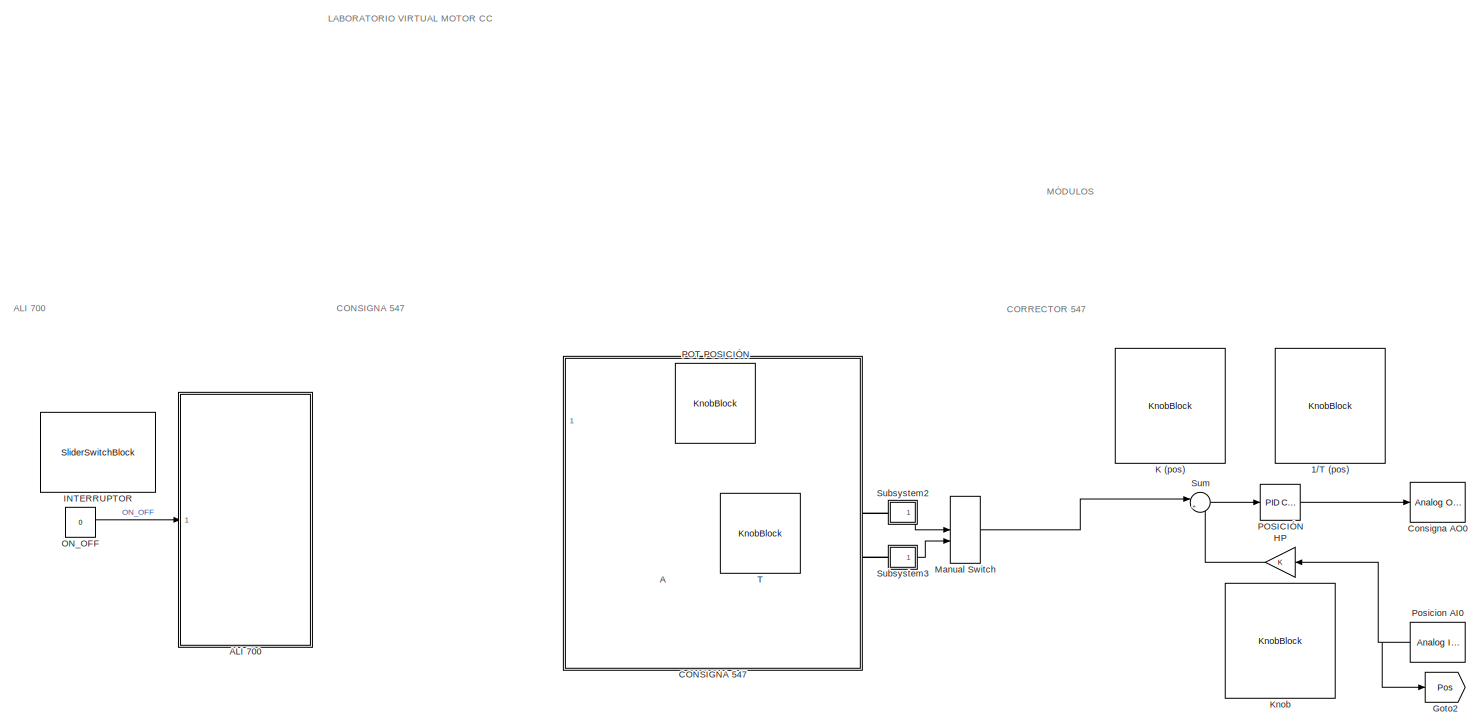
[diagram: root canvas - part 1/3, top left region]
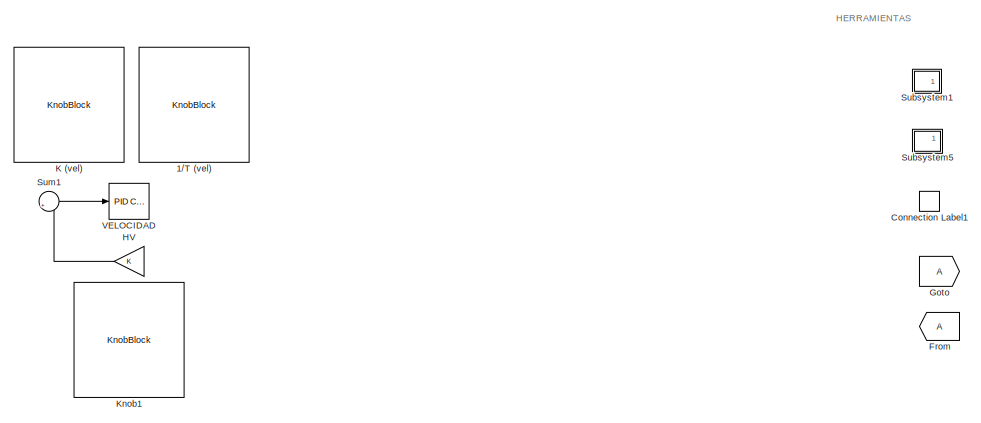
[diagram: root canvas - part 2/3, middle right region]
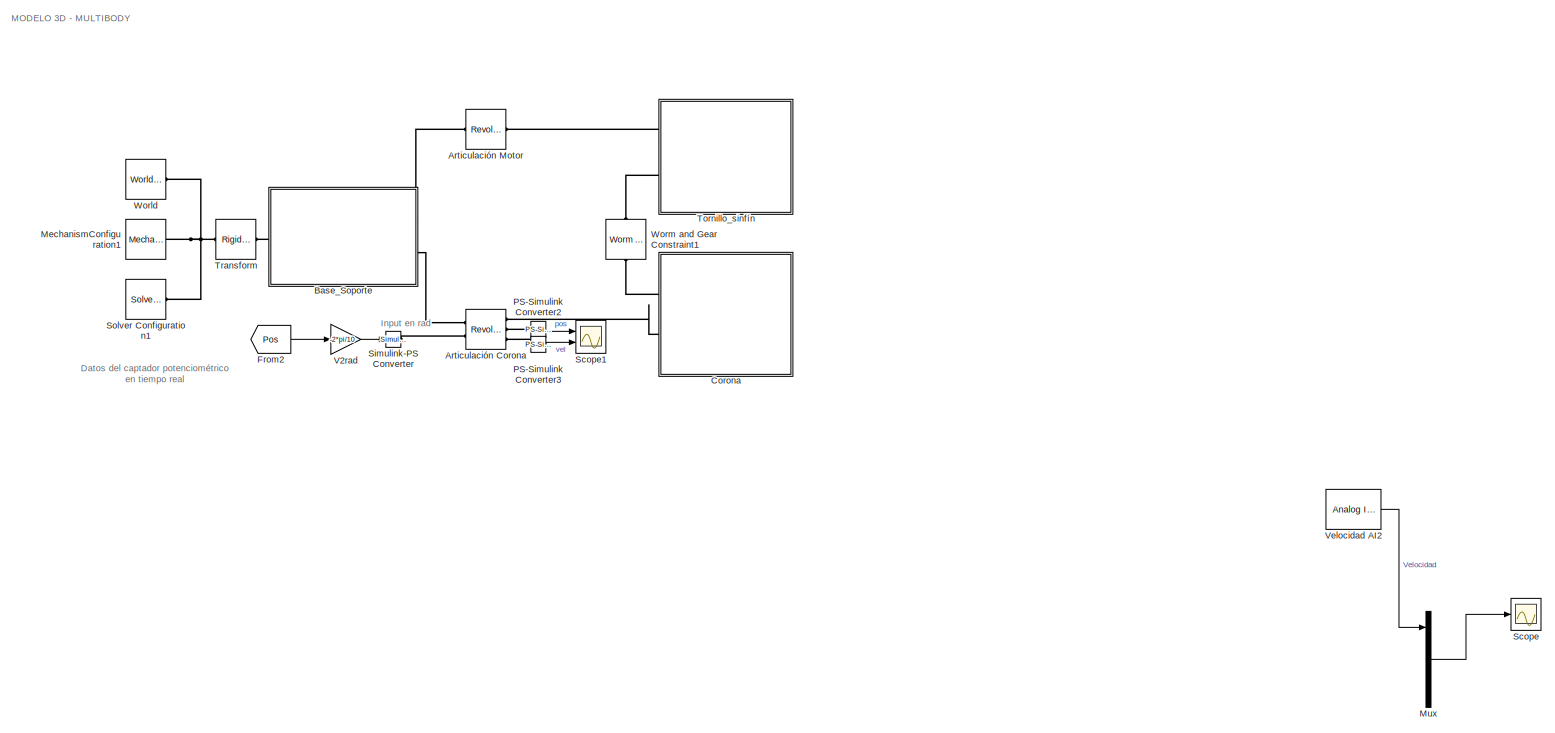
[diagram: root canvas - part 3/3, bottom center region]
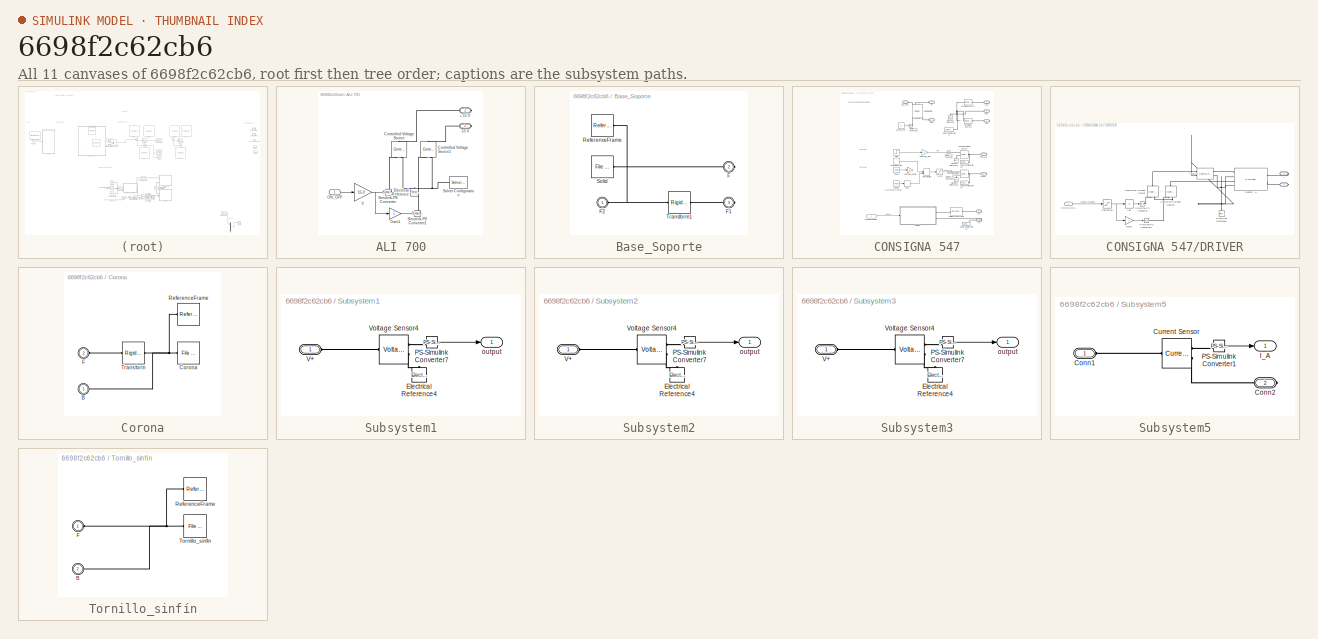
[diagram: thumbnail index - all 11 canvases of the model, root first then tree order]
MODEL slx_6698f2c62cb6
KIND model
CONFIG AbsTol = auto
CONFIG EnableMultiTasking = off
CONFIG FixedStep = 0.001
CONFIG MaxStep = 0.001
CONFIG MinStep = auto
CONFIG RelTol = auto
CONFIG SampleTimeConstraint = Unconstrained
CONFIG SolverName = ode5
CONFIG StartTime = 0.0
CONFIG StopTime = inf
WORKSPACE source: mxarray member
WORKSPACE A = 5
WORKSPACE Frec = 1
WORKSPACE a = 1
BLOCK [KnobBlock] 1//T (pos)
  LabelPosition = Hide
  ScaleMax = 10
  TickInterval = 1
BLOCK [KnobBlock] 1//T (vel)
  LabelPosition = Hide
  ScaleMax = 10
  TickInterval = 1
BLOCK [KnobBlock] A
  LabelPosition = Hide
  ScaleMax = 10
  TickInterval = 1
BLOCK [SubSystem] ALI 700
  Ports = [1, 0, 0, 0, 0, 0, 2]
  RequestExecContextInheritance = off
BLOCK [PMIOPort] ALI 700/+ 15 V
  Side = Right
BLOCK [PMIOPort] ALI 700/-15 V
  Port = 2
  Side = Right
BLOCK [Reference] ALI 700/Controlled Voltage Source  REF=fl_lib/Electrical/Electrical Sources/Controlled Voltage
Source
  NameLocation = right
  Ports = [0, 0, 0, 0, 0, 1, 2]
  SourceBlock = fl_lib/Electrical/Electrical Sources/Controlled Voltage\nSource
  SourceProductBaseCode = SS
  SourceType = Controlled Voltage\nSource
BLOCK [Reference] ALI 700/Controlled Voltage Source1  REF=fl_lib/Electrical/Electrical Sources/Controlled Voltage
Source
  NameLocation = right
  Ports = [0, 0, 0, 0, 0, 1, 2]
  SourceBlock = fl_lib/Electrical/Electrical Sources/Controlled Voltage\nSource
  SourceProductBaseCode = SS
  SourceType = Controlled Voltage\nSource
BLOCK [Reference] ALI 700/Electrical Reference  REF=fl_lib/Electrical/Electrical Elements/Electrical Reference
  NameLocation = right
  Ports = [0, 0, 0, 0, 0, 1]
  SourceBlock = fl_lib/Electrical/Electrical Elements/Electrical Reference
  SourceProductBaseCode = SS
  SourceType = Electrical Reference
BLOCK [Gain] ALI 700/Gain1
  Gain = -1
BLOCK [Inport] ALI 700/ON_OFF
BLOCK [Reference] ALI 700/Simulink-PS Converter  REF=nesl_utility/Simulink-PS
Converter
  Ports = [1, 0, 0, 0, 0, 0, 1]
  SourceBlock = nesl_utility/Simulink-PS\nConverter
  SourceProductBaseCode = SS
  SourceType = Simulink-PS\nConverter
BLOCK [Reference] ALI 700/Simulink-PS Converter1  REF=nesl_utility/Simulink-PS
Converter
  Ports = [1, 0, 0, 0, 0, 0, 1]
  SourceBlock = nesl_utility/Simulink-PS\nConverter
  SourceProductBaseCode = SS
  SourceType = Simulink-PS\nConverter
BLOCK [Reference] ALI 700/Solver Configuration  REF=nesl_utility/Solver
Configuration
  NameLocation = top
  Ports = [0, 0, 0, 0, 0, 0, 1]
  SourceBlock = nesl_utility/Solver\nConfiguration
  SourceProductBaseCode = SS
  SourceType = Solver\nConfiguration
BLOCK [Gain] ALI 700/V
  Gain = 15.3
BLOCK [Reference] Articulación Corona  REF=sm_lib/Joints/Revolute Joint
  Ports = [0, 0, 0, 0, 0, 2, 3]
  SourceBlock = sm_lib/Joints/Revolute Joint
  SourceProductBaseCode = MS
  SourceType = Revolute Joint
BLOCK [Reference] Articulación Motor  REF=sm_lib/Joints/Revolute Joint
  Ports = [0, 0, 0, 0, 0, 1, 1]
  SourceBlock = sm_lib/Joints/Revolute Joint
  SourceProductBaseCode = MS
  SourceType = Revolute Joint
BLOCK [SubSystem] Base_Soporte
  Ports = [0, 0, 0, 0, 0, 1, 2]
  RequestExecContextInheritance = off
BLOCK [PMIOPort] Base_Soporte/F
  Port = 2
  Side = Right
BLOCK [PMIOPort] Base_Soporte/F1
  Port = 3
  Side = Right
BLOCK [PMIOPort] Base_Soporte/F2
  NameLocation = top
  Side = Left
BLOCK [Reference] Base_Soporte/ReferenceFrame  REF=sm_lib/Frames and
Transforms/Reference
Frame
  Ports = [0, 0, 0, 0, 0, 0, 1]
  SourceBlock = sm_lib/Frames and\nTransforms/Reference\nFrame
  SourceProductBaseCode = MS
  SourceType = Reference\nFrame
BLOCK [Reference] Base_Soporte/Solid  REF=sm_lib/Body Elements/File Solid
  Ports = [0, 0, 0, 0, 0, 0, 1]
  SourceBlock = sm_lib/Body Elements/File Solid
  SourceProductBaseCode = MS
  SourceType = File Solid
BLOCK [Reference] Base_Soporte/Transform1  REF=sm_lib/Frames and
Transforms/Rigid
Transform
  Ports = [0, 0, 0, 0, 0, 1, 1]
  SourceBlock = sm_lib/Frames and\nTransforms/Rigid\nTransform
  SourceProductBaseCode = MS
  SourceType = Rigid\nTransform
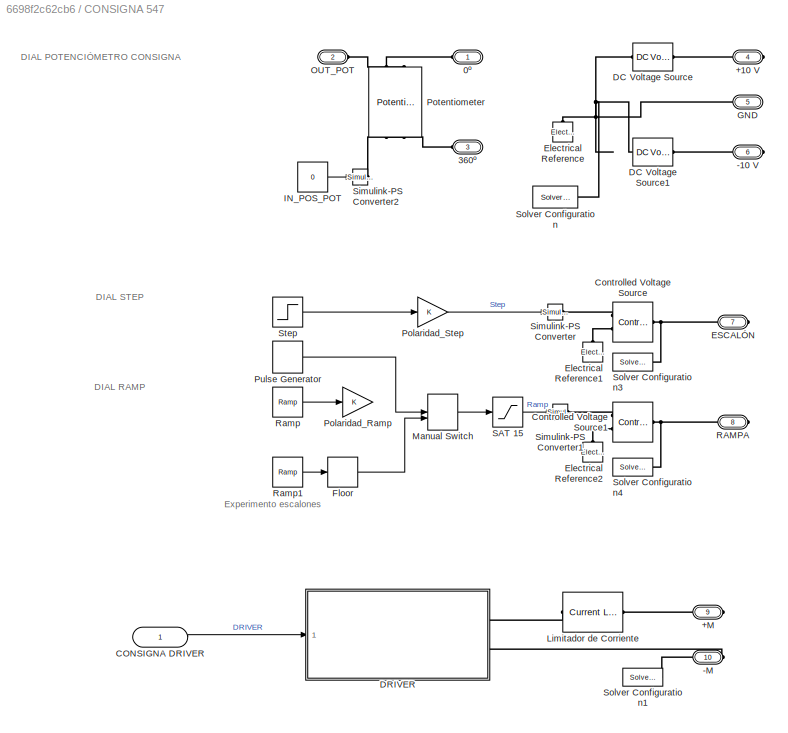
BLOCK [SubSystem] CONSIGNA 547
  PortSchema = {"entries":[{"content":{"sides":[{"content":{"connectorIds":["LConn1","LConn2","LConn3","In1"]},"type":"ConnectorPlacement.EquallySpacedRectSide","uuid":"4a8cfb57-dab5-486b-a591-dc2fea0d0b24"},{"content":{"connectorIds":["RConn1","RConn2","RConn3","RConn4","RConn5","RConn6","RConn7"],"side":"RIGHT"},"type":"ConnectorPlacement.EquallySpacedRectSide","uuid":"c23f5fb5-28b8-45c6-932c-b7e70ba2c44b"},{"...<+305ch>
  Ports = [1, 0, 0, 0, 0, 3, 7]
  RequestExecContextInheritance = off
BLOCK [PMIOPort] CONSIGNA 547/+10 V
  Port = 4
  Side = Right
BLOCK [PMIOPort] CONSIGNA 547/+M
  Port = 9
  Side = Right
BLOCK [PMIOPort] CONSIGNA 547/-10 V
  Port = 6
  Side = Right
BLOCK [PMIOPort] CONSIGNA 547/-M
  Port = 10
  Side = Right
BLOCK [PMIOPort] CONSIGNA 547/0º
  Side = Left
BLOCK [PMIOPort] CONSIGNA 547/360º
  Port = 3
  Side = Left
BLOCK [Inport] CONSIGNA 547/CONSIGNA  DRIVER
  IconDisplay = Signal name
BLOCK [Reference] CONSIGNA 547/Controlled Voltage Source  REF=fl_lib/Electrical/Electrical Sources/Controlled Voltage
Source
  Ports = [0, 0, 0, 0, 0, 1, 2]
  SourceBlock = fl_lib/Electrical/Electrical Sources/Controlled Voltage\nSource
  SourceProductBaseCode = SS
  SourceType = Controlled Voltage\nSource
BLOCK [Reference] CONSIGNA 547/Controlled Voltage Source1  REF=fl_lib/Electrical/Electrical Sources/Controlled Voltage
Source
  Ports = [0, 0, 0, 0, 0, 1, 2]
  SourceBlock = fl_lib/Electrical/Electrical Sources/Controlled Voltage\nSource
  SourceProductBaseCode = SS
  SourceType = Controlled Voltage\nSource
BLOCK [Reference] CONSIGNA 547/DC Voltage Source  REF=fl_lib/Electrical/Electrical Sources/DC Voltage Source
  Commented = on
  Ports = [0, 0, 0, 0, 0, 1, 1]
  SourceBlock = fl_lib/Electrical/Electrical Sources/DC Voltage Source
  SourceProductBaseCode = SS
  SourceType = DC Voltage Source
BLOCK [Reference] CONSIGNA 547/DC Voltage Source1  REF=fl_lib/Electrical/Electrical Sources/DC Voltage Source
  Commented = on
  Ports = [0, 0, 0, 0, 0, 1, 1]
  SourceBlock = fl_lib/Electrical/Electrical Sources/DC Voltage Source
  SourceProductBaseCode = SS
  SourceType = DC Voltage Source
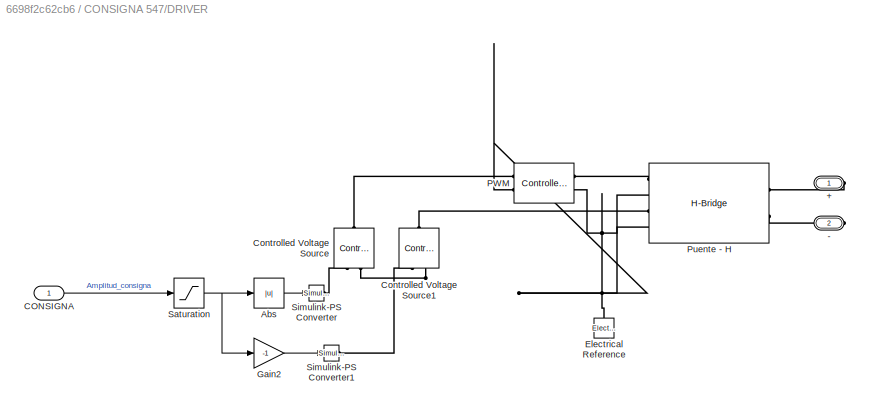
BLOCK [SubSystem] CONSIGNA 547/DRIVER
  Commented = on
  Ports = [1, 0, 0, 0, 0, 0, 2]
  RequestExecContextInheritance = off
BLOCK [PMIOPort] CONSIGNA 547/DRIVER/+
  Side = Right
BLOCK [PMIOPort] CONSIGNA 547/DRIVER/-
  Port = 2
  Side = Right
BLOCK [Abs] CONSIGNA 547/DRIVER/Abs
  SaturateOnIntegerOverflow = off
BLOCK [Inport] CONSIGNA 547/DRIVER/CONSIGNA
BLOCK [Reference] CONSIGNA 547/DRIVER/Controlled Voltage Source  REF=fl_lib/Electrical/Electrical Sources/Controlled Voltage
Source
  NameLocation = right
  Ports = [0, 0, 0, 0, 0, 1, 2]
  SourceBlock = fl_lib/Electrical/Electrical Sources/Controlled Voltage\nSource
  SourceProductBaseCode = SS
  SourceType = Controlled Voltage\nSource
BLOCK [Reference] CONSIGNA 547/DRIVER/Controlled Voltage Source1  REF=fl_lib/Electrical/Electrical Sources/Controlled Voltage
Source
  NameLocation = right
  Ports = [0, 0, 0, 0, 0, 1, 2]
  SourceBlock = fl_lib/Electrical/Electrical Sources/Controlled Voltage\nSource
  SourceProductBaseCode = SS
  SourceType = Controlled Voltage\nSource
BLOCK [Reference] CONSIGNA 547/DRIVER/Electrical Reference  REF=fl_lib/Electrical/Electrical Elements/Electrical Reference
  NameLocation = right
  Ports = [0, 0, 0, 0, 0, 1]
  SourceBlock = fl_lib/Electrical/Electrical Elements/Electrical Reference
  SourceProductBaseCode = SS
  SourceType = Electrical Reference
BLOCK [Gain] CONSIGNA 547/DRIVER/Gain2
  Gain = -1
BLOCK [Reference] CONSIGNA 547/DRIVER/PWM  REF=ee_lib/Integrated Circuits/Controlled PWM
Voltage
  NameLocation = top
  Ports = [0, 0, 0, 0, 0, 2, 2]
  SourceBlock = ee_lib/Integrated Circuits/Controlled PWM\nVoltage
  SourceProductBaseCode = PS
  SourceType = Controlled PWM\nVoltage
BLOCK [Reference] CONSIGNA 547/DRIVER/Puente - H  REF=ee_lib/Semiconductors &
Converters/Converters/H-Bridge
  NameLocation = top
  Ports = [0, 0, 0, 0, 0, 4, 2]
  SourceBlock = ee_lib/Semiconductors &\nConverters/Converters/H-Bridge
  SourceProductBaseCode = PS
  SourceType = H-Bridge
BLOCK [Saturate] CONSIGNA 547/DRIVER/Saturation
  LowerLimit = -PWM_sat
  UpperLimit = PWM_sat
BLOCK [Reference] CONSIGNA 547/DRIVER/Simulink-PS Converter  REF=nesl_utility/Simulink-PS
Converter
  Ports = [1, 0, 0, 0, 0, 0, 1]
  SourceBlock = nesl_utility/Simulink-PS\nConverter
  SourceProductBaseCode = SS
  SourceType = Simulink-PS\nConverter
BLOCK [Reference] CONSIGNA 547/DRIVER/Simulink-PS Converter1  REF=nesl_utility/Simulink-PS
Converter
  Ports = [1, 0, 0, 0, 0, 0, 1]
  SourceBlock = nesl_utility/Simulink-PS\nConverter
  SourceProductBaseCode = SS
  SourceType = Simulink-PS\nConverter
BLOCK [PMIOPort] CONSIGNA 547/ESCALÓN
  Port = 7
  Side = Right
BLOCK [Reference] CONSIGNA 547/Electrical Reference  REF=fl_lib/Electrical/Electrical Elements/Electrical Reference
  Commented = on
  NameLocation = right
  Ports = [0, 0, 0, 0, 0, 1]
  SourceBlock = fl_lib/Electrical/Electrical Elements/Electrical Reference
  SourceProductBaseCode = SS
  SourceType = Electrical Reference
BLOCK [Reference] CONSIGNA 547/Electrical Reference1  REF=fl_lib/Electrical/Electrical Elements/Electrical Reference
  NameLocation = right
  Ports = [0, 0, 0, 0, 0, 1]
  SourceBlock = fl_lib/Electrical/Electrical Elements/Electrical Reference
  SourceProductBaseCode = SS
  SourceType = Electrical Reference
BLOCK [Reference] CONSIGNA 547/Electrical Reference2  REF=fl_lib/Electrical/Electrical Elements/Electrical Reference
  NameLocation = right
  Ports = [0, 0, 0, 0, 0, 1]
  SourceBlock = fl_lib/Electrical/Electrical Elements/Electrical Reference
  SourceProductBaseCode = SS
  SourceType = Electrical Reference
BLOCK [Rounding] CONSIGNA 547/Floor
BLOCK [PMIOPort] CONSIGNA 547/GND
  Port = 5
  Side = Right
BLOCK [Constant] CONSIGNA 547/IN_POS_POT
  Commented = on
  Value = 0
BLOCK [Reference] CONSIGNA 547/Limitador de Corriente  REF=ee_lib/Semiconductors &
Converters/Current Limiter
  Commented = on
  NameLocation = top
  Ports = [0, 0, 0, 0, 0, 1, 1]
  SourceBlock = ee_lib/Semiconductors &\nConverters/Current Limiter
  SourceProductBaseCode = PS
  SourceType = Current Limiter
BLOCK [ManualSwitch] CONSIGNA 547/Manual Switch
BLOCK [PMIOPort] CONSIGNA 547/OUT_POT
  NameLocation = top
  Port = 2
  Side = Left
BLOCK [Gain] CONSIGNA 547/Polaridad_Ramp
BLOCK [Gain] CONSIGNA 547/Polaridad_Step
BLOCK [Reference] CONSIGNA 547/Potentiometer  REF=ee_lib/Passive/Potentiometer
  Commented = on
  NameLocation = left
  Ports = [0, 0, 0, 0, 0, 2, 2]
  SourceBlock = ee_lib/Passive/Potentiometer
  SourceProductBaseCode = PS
  SourceType = Potentiometer
BLOCK [DiscretePulseGenerator] CONSIGNA 547/Pulse Generator
  Amplitude = 5
  Period = 3
  Ports = [0, 1]
  PulseType = Time based
  PulseWidth = 50
BLOCK [PMIOPort] CONSIGNA 547/RAMPA
  Port = 8
  Side = Right
BLOCK [Reference] CONSIGNA 547/Ramp  REF=simulink/Sources/Ramp
  Ports = [0, 1]
  SourceBlock = simulink/Sources/Ramp
  SourceProductBaseCode = SL
  SourceType = Ramp
BLOCK [Reference] CONSIGNA 547/Ramp1  REF=simulink/Sources/Ramp
  Ports = [0, 1]
  SourceBlock = simulink/Sources/Ramp
  SourceProductBaseCode = SL
  SourceType = Ramp
BLOCK [Saturate] CONSIGNA 547/SAT 15
  LowerLimit = -15
  UpperLimit = 15
BLOCK [Reference] CONSIGNA 547/Simulink-PS Converter  REF=nesl_utility/Simulink-PS
Converter
  Ports = [1, 0, 0, 0, 0, 0, 1]
  SourceBlock = nesl_utility/Simulink-PS\nConverter
  SourceProductBaseCode = SS
  SourceType = Simulink-PS\nConverter
BLOCK [Reference] CONSIGNA 547/Simulink-PS Converter1  REF=nesl_utility/Simulink-PS
Converter
  Ports = [1, 0, 0, 0, 0, 0, 1]
  SourceBlock = nesl_utility/Simulink-PS\nConverter
  SourceProductBaseCode = SS
  SourceType = Simulink-PS\nConverter
BLOCK [Reference] CONSIGNA 547/Simulink-PS Converter2  REF=nesl_utility/Simulink-PS
Converter
  Commented = on
  Ports = [1, 0, 0, 0, 0, 0, 1]
  SourceBlock = nesl_utility/Simulink-PS\nConverter
  SourceProductBaseCode = SS
  SourceType = Simulink-PS\nConverter
BLOCK [Reference] CONSIGNA 547/Solver Configuration  REF=nesl_utility/Solver
Configuration
  Commented = on
  Ports = [0, 0, 0, 0, 0, 0, 1]
  SourceBlock = nesl_utility/Solver\nConfiguration
  SourceProductBaseCode = SS
  SourceType = Solver\nConfiguration
BLOCK [Reference] CONSIGNA 547/Solver Configuration1  REF=nesl_utility/Solver
Configuration
  Commented = on
  Ports = [0, 0, 0, 0, 0, 0, 1]
  SourceBlock = nesl_utility/Solver\nConfiguration
  SourceProductBaseCode = SS
  SourceType = Solver\nConfiguration
BLOCK [Reference] CONSIGNA 547/Solver Configuration3  REF=nesl_utility/Solver
Configuration
  Ports = [0, 0, 0, 0, 0, 0, 1]
  SourceBlock = nesl_utility/Solver\nConfiguration
  SourceProductBaseCode = SS
  SourceType = Solver\nConfiguration
BLOCK [Reference] CONSIGNA 547/Solver Configuration4  REF=nesl_utility/Solver
Configuration
  Ports = [0, 0, 0, 0, 0, 0, 1]
  SourceBlock = nesl_utility/Solver\nConfiguration
  SourceProductBaseCode = SS
  SourceType = Solver\nConfiguration
BLOCK [Step] CONSIGNA 547/Step
  After = 7.527891575934077
  SampleTime = 0
BLOCK [ConnectionLabel] Connection Label1
  Ports = [0, 0, 0, 0, 0, 1]
BLOCK [Reference] Consigna AO0  REF=sldrtlib/Analog Output
  AttributesFormatString = National Instruments\nPCIe-6321 [auto]
  Ports = [1]
  SourceBlock = sldrtlib/Analog Output
  SourceProductBaseCode = WT
  SourceType = Simulink Desktop Real-Time Analog Output
BLOCK [SubSystem] Corona
  Ports = [0, 0, 0, 0, 0, 2]
  RequestExecContextInheritance = off
BLOCK [PMIOPort] Corona/B
  NameLocation = top
  Side = Left
BLOCK [Reference] Corona/Corona  REF=sm_lib/Body Elements/File Solid
  NameLocation = top
  Ports = [0, 0, 0, 0, 0, 0, 1]
  SourceBlock = sm_lib/Body Elements/File Solid
  SourceProductBaseCode = MS
  SourceType = File Solid
BLOCK [PMIOPort] Corona/F
  NameLocation = top
  Port = 2
  Side = Left
BLOCK [Reference] Corona/ReferenceFrame  REF=sm_lib/Frames and
Transforms/Reference
Frame
  NameLocation = top
  Ports = [0, 0, 0, 0, 0, 0, 1]
  SourceBlock = sm_lib/Frames and\nTransforms/Reference\nFrame
  SourceProductBaseCode = MS
  SourceType = Reference\nFrame
BLOCK [Reference] Corona/Transform  REF=sm_lib/Frames and
Transforms/Rigid
Transform
  NameLocation = top
  Ports = [0, 0, 0, 0, 0, 1, 1]
  SourceBlock = sm_lib/Frames and\nTransforms/Rigid\nTransform
  SourceProductBaseCode = MS
  SourceType = Rigid\nTransform
BLOCK [From] From
  Commented = on
BLOCK [From] From2
  GotoTag = Pos
BLOCK [Goto] Goto
  Commented = on
BLOCK [Goto] Goto2
  GotoTag = Pos
BLOCK [Gain] HP
BLOCK [Gain] HV
BLOCK [SliderSwitchBlock] INTERRUPTOR
  LabelPosition = Hide
BLOCK [KnobBlock] K (pos)
  LabelPosition = Hide
  ScaleMax = 10
  TickInterval = 1
BLOCK [KnobBlock] K (vel)
  LabelPosition = Hide
  ScaleMax = 10
  TickInterval = 1
BLOCK [KnobBlock] Knob
  LabelPosition = Hide
  ScaleMax = 1
  TickInterval = 0.1
BLOCK [KnobBlock] Knob1
  LabelPosition = Hide
  ScaleMax = 2
  TickInterval = 0.2
BLOCK [ManualSwitch] Manual Switch
BLOCK [Reference] MechanismConfiguration1  REF=sm_lib/Utilities/Mechanism
Configuration
  Ports = [0, 0, 0, 0, 0, 0, 1]
  SourceBlock = sm_lib/Utilities/Mechanism\nConfiguration
  SourceProductBaseCode = MS
  SourceType = Mechanism\nConfiguration
BLOCK [Mux] Mux
  Commented = on
  DisplayOption = bar
  Inputs = 5
  Ports = [5, 1]
BLOCK [Constant] ON_OFF
  Value = 0
BLOCK [Reference] POSICIÓN  REF=pid_lib/PID Controller
  Ports = [1, 1]
  SourceBlock = pid_lib/PID Controller
  SourceProductBaseCode = SL
  SourceType = PID 1dof
BLOCK [KnobBlock] POT POSICIÓN
  LabelPosition = Hide
  ScaleMax = 360
  TickInterval = 20
BLOCK [Reference] PS-Simulink Converter2  REF=nesl_utility/PS-Simulink
Converter
  Ports = [0, 1, 0, 0, 0, 1]
  SourceBlock = nesl_utility/PS-Simulink\nConverter
  SourceProductBaseCode = SS
  SourceType = PS-Simulink\nConverter
BLOCK [Reference] PS-Simulink Converter3  REF=nesl_utility/PS-Simulink
Converter
  Ports = [0, 1, 0, 0, 0, 1]
  SourceBlock = nesl_utility/PS-Simulink\nConverter
  SourceProductBaseCode = SS
  SourceType = PS-Simulink\nConverter
BLOCK [Reference] Posicion AI0  REF=sldrtlib/Analog Input
  AttributesFormatString = National Instruments\nPCIe-6321 [auto]
  NameLocation = top
  Ports = [0, 1]
  SourceBlock = sldrtlib/Analog Input
  SourceProductBaseCode = WT
  SourceType = Simulink Desktop Real-Time Analog Input
BLOCK [Scope] Scope
  Commented = on
  Floating = off
  NumInputPorts = 1
  Ports = [1]
  ScopeSpecificationString = Simulink.scopes.TimeScopeBlockCfg('CurrentConfiguration', extmgr.ConfigurationSet(extmgr.Configuration('Core','General UI',true),extmgr.Configuration('Core','Source UI',true),extmgr.Configuration('Sources','WiredSimulink',true,'DataLoggingVariableName','ScopeData1'),extmgr.Configuration('Visuals','Time Domain',true,'SerializedDisplays',{struct('MinYLimReal','-59.58131','MaxYLimReal','18.44827','YL...<+1471ch>
BLOCK [Scope] Scope1
  Floating = off
  NumInputPorts = 2
  Ports = [2]
  ScopeSpecificationString = Simulink.scopes.TimeScopeBlockCfg('CurrentConfiguration', extmgr.ConfigurationSet(extmgr.Configuration('Core','General UI',true),extmgr.Configuration('Core','Source UI',true),extmgr.Configuration('Sources','WiredSimulink',true,'DataLoggingVariableName','ScopeData1'),extmgr.Configuration('Visuals','Time Domain',true,'SerializedDisplays',{struct('MinYLimReal','-110.28508','MaxYLimReal','103.3749','Y...<+1408ch>
BLOCK [Reference] Simulink-PS Converter  REF=nesl_utility/Simulink-PS
Converter
  Ports = [1, 0, 0, 0, 0, 0, 1]
  SourceBlock = nesl_utility/Simulink-PS\nConverter
  SourceProductBaseCode = SS
  SourceType = Simulink-PS\nConverter
BLOCK [Reference] Solver Configuration1  REF=nesl_utility/Solver
Configuration
  Ports = [0, 0, 0, 0, 0, 0, 1]
  SourceBlock = nesl_utility/Solver\nConfiguration
  SourceProductBaseCode = SS
  SourceType = Solver\nConfiguration
BLOCK [SubSystem] Subsystem1
  Commented = on
  Ports = [0, 1, 0, 0, 0, 1]
  RequestExecContextInheritance = off
BLOCK [Reference] Subsystem1/Electrical Reference4  REF=fl_lib/Electrical/Electrical Elements/Electrical Reference
  NameLocation = right
  Ports = [0, 0, 0, 0, 0, 1]
  SourceBlock = fl_lib/Electrical/Electrical Elements/Electrical Reference
  SourceProductBaseCode = SS
  SourceType = Electrical Reference
BLOCK [Reference] Subsystem1/PS-Simulink Converter7  REF=nesl_utility/PS-Simulink
Converter
  Ports = [0, 1, 0, 0, 0, 1]
  SourceBlock = nesl_utility/PS-Simulink\nConverter
  SourceProductBaseCode = SS
  SourceType = PS-Simulink\nConverter
BLOCK [PMIOPort] Subsystem1/V+
  Side = Left
BLOCK [Reference] Subsystem1/Voltage Sensor4  REF=fl_lib/Electrical/Electrical Sensors/Voltage Sensor
  NameLocation = top
  Ports = [0, 0, 0, 0, 0, 1, 2]
  SourceBlock = fl_lib/Electrical/Electrical Sensors/Voltage Sensor
  SourceProductBaseCode = SS
  SourceType = Voltage Sensor
BLOCK [Outport] Subsystem1/output
BLOCK [SubSystem] Subsystem2
  Ports = [0, 1, 0, 0, 0, 1]
  RequestExecContextInheritance = off
BLOCK [Reference] Subsystem2/Electrical Reference4  REF=fl_lib/Electrical/Electrical Elements/Electrical Reference
  NameLocation = right
  Ports = [0, 0, 0, 0, 0, 1]
  SourceBlock = fl_lib/Electrical/Electrical Elements/Electrical Reference
  SourceProductBaseCode = SS
  SourceType = Electrical Reference
BLOCK [Reference] Subsystem2/PS-Simulink Converter7  REF=nesl_utility/PS-Simulink
Converter
  Ports = [0, 1, 0, 0, 0, 1]
  SourceBlock = nesl_utility/PS-Simulink\nConverter
  SourceProductBaseCode = SS
  SourceType = PS-Simulink\nConverter
BLOCK [PMIOPort] Subsystem2/V+
  Side = Left
BLOCK [Reference] Subsystem2/Voltage Sensor4  REF=fl_lib/Electrical/Electrical Sensors/Voltage Sensor
  NameLocation = top
  Ports = [0, 0, 0, 0, 0, 1, 2]
  SourceBlock = fl_lib/Electrical/Electrical Sensors/Voltage Sensor
  SourceProductBaseCode = SS
  SourceType = Voltage Sensor
BLOCK [Outport] Subsystem2/output
BLOCK [SubSystem] Subsystem3
  Ports = [0, 1, 0, 0, 0, 1]
  RequestExecContextInheritance = off
BLOCK [Reference] Subsystem3/Electrical Reference4  REF=fl_lib/Electrical/Electrical Elements/Electrical Reference
  NameLocation = right
  Ports = [0, 0, 0, 0, 0, 1]
  SourceBlock = fl_lib/Electrical/Electrical Elements/Electrical Reference
  SourceProductBaseCode = SS
  SourceType = Electrical Reference
BLOCK [Reference] Subsystem3/PS-Simulink Converter7  REF=nesl_utility/PS-Simulink
Converter
  Ports = [0, 1, 0, 0, 0, 1]
  SourceBlock = nesl_utility/PS-Simulink\nConverter
  SourceProductBaseCode = SS
  SourceType = PS-Simulink\nConverter
BLOCK [PMIOPort] Subsystem3/V+
  Side = Left
BLOCK [Reference] Subsystem3/Voltage Sensor4  REF=fl_lib/Electrical/Electrical Sensors/Voltage Sensor
  NameLocation = top
  Ports = [0, 0, 0, 0, 0, 1, 2]
  SourceBlock = fl_lib/Electrical/Electrical Sensors/Voltage Sensor
  SourceProductBaseCode = SS
  SourceType = Voltage Sensor
BLOCK [Outport] Subsystem3/output
BLOCK [SubSystem] Subsystem5
  Commented = on
  PortSchema = {"entries":[{"content":{"sides":[{"content":{"connectorIds":["LConn1"]},"type":"ConnectorPlacement.EquallySpacedRectSide","uuid":"5f01206e-22b9-410b-acd2-df307548d4ec"},{"content":{"connectorIds":["RConn1"],"side":"RIGHT"},"type":"ConnectorPlacement.EquallySpacedRectSide","uuid":"8e9acb11-d78e-4e8a-8f36-3c08acadde04"},{"content":{"side":"TOP"},"type":"ConnectorPlacement.EquallySpacedRectSide","uui...<+377ch>
  Ports = [0, 1, 0, 0, 0, 1, 1]
  RequestExecContextInheritance = off
BLOCK [PMIOPort] Subsystem5/Conn1
  Side = Left
BLOCK [PMIOPort] Subsystem5/Conn2
  Port = 2
  Side = Right
BLOCK [Reference] Subsystem5/Current Sensor  REF=fl_lib/Electrical/Electrical Sensors/Current Sensor
  Ports = [0, 0, 0, 0, 0, 1, 2]
  SourceBlock = fl_lib/Electrical/Electrical Sensors/Current Sensor
  SourceProductBaseCode = SS
  SourceType = Current Sensor
BLOCK [Outport] Subsystem5/I_A
BLOCK [Reference] Subsystem5/PS-Simulink Converter1  REF=nesl_utility/PS-Simulink
Converter
  Ports = [0, 1, 0, 0, 0, 1]
  SourceBlock = nesl_utility/PS-Simulink\nConverter
  SourceProductBaseCode = SS
  SourceType = PS-Simulink\nConverter
BLOCK [Sum] Sum
  Inputs = |+-
  Ports = [2, 1]
BLOCK [Sum] Sum1
  Inputs = |+-
  Ports = [2, 1]
BLOCK [KnobBlock] T
  LabelPosition = Hide
  ScaleMax = 10
  TickInterval = 1
BLOCK [SubSystem] Tornillo_sinfín
  Ports = [0, 0, 0, 0, 0, 2]
  RequestExecContextInheritance = off
BLOCK [PMIOPort] Tornillo_sinfín/B
  NameLocation = top
  Port = 2
  Side = Left
BLOCK [PMIOPort] Tornillo_sinfín/F
  NameLocation = top
  Side = Left
BLOCK [Reference] Tornillo_sinfín/ReferenceFrame  REF=sm_lib/Frames and
Transforms/Reference
Frame
  NameLocation = top
  Ports = [0, 0, 0, 0, 0, 0, 1]
  SourceBlock = sm_lib/Frames and\nTransforms/Reference\nFrame
  SourceProductBaseCode = MS
  SourceType = Reference\nFrame
BLOCK [Reference] Tornillo_sinfín/Tornillo_sinfin  REF=sm_lib/Body Elements/File Solid
  NameLocation = top
  Ports = [0, 0, 0, 0, 0, 0, 1]
  SourceBlock = sm_lib/Body Elements/File Solid
  SourceProductBaseCode = MS
  SourceType = File Solid
BLOCK [Reference] Transform  REF=sm_lib/Frames and
Transforms/Rigid
Transform
  Ports = [0, 0, 0, 0, 0, 1, 1]
  SourceBlock = sm_lib/Frames and\nTransforms/Rigid\nTransform
  SourceProductBaseCode = MS
  SourceType = Rigid\nTransform
BLOCK [Gain] V2rad
  Gain = -2*pi/10
BLOCK [Reference] VELOCIDAD  REF=pid_lib/PID Controller
  Ports = [1, 1]
  SourceBlock = pid_lib/PID Controller
  SourceProductBaseCode = SL
  SourceType = PID 1dof
BLOCK [Reference] Velocidad AI2  REF=sldrtlib/Analog Input
  AttributesFormatString = National Instruments\nPCIe-6321 [auto]
  Commented = on
  Ports = [0, 1]
  SourceBlock = sldrtlib/Analog Input
  SourceProductBaseCode = WT
  SourceType = Simulink Desktop Real-Time Analog Input
BLOCK [Reference] World  REF=sm_lib/Frames and
Transforms/World Frame
  Ports = [0, 0, 0, 0, 0, 0, 1]
  SourceBlock = sm_lib/Frames and\nTransforms/World Frame
  SourceProductBaseCode = MS
  SourceType = World Frame
BLOCK [Reference] Worm and Gear Constraint1  REF=sm_lib/Gears and
Couplings/Gears/Worm and Gear
Constraint
  NameLocation = left
  Ports = [0, 0, 0, 0, 0, 1, 1]
  SourceBlock = sm_lib/Gears and\nCouplings/Gears/Worm and Gear\nConstraint
  SourceProductBaseCode = MS
  SourceType = Worm and Gear\nConstraint
ANNOTATION (root): LABORATORIO VIRTUAL MOTOR CC
ANNOTATION (root): MÓDULOS
ANNOTATION (root): Datos del captador potenciométrico en tiempo real
ANNOTATION (root): HERRAMIENTAS
ANNOTATION (root): ALI 700
ANNOTATION (root): CONSIGNA 547
ANNOTATION (root): CORRECTOR 547
ANNOTATION (root): Input en rad
ANNOTATION (root): MODELO 3D - MULTIBODY
ANNOTATION CONSIGNA 547: DIAL POTENCIÓMETRO CONSIGNA
ANNOTATION CONSIGNA 547: DIAL RAMP
ANNOTATION CONSIGNA 547: DIAL STEP
ANNOTATION CONSIGNA 547: Experimento escalones
LINE ALI 700/Gain1:1 -> ALI 700/Simulink-PS Converter1:1
LINE ALI 700/ON_OFF:1 -> ALI 700/V:1
NET ALI 700/V:1 -> ALI 700/Gain1:1, ALI 700/Simulink-PS Converter:1
LINE CONSIGNA 547/CONSIGNA  DRIVER:1 -> CONSIGNA 547/DRIVER:1
LINE CONSIGNA 547/DRIVER/Abs:1 -> CONSIGNA 547/DRIVER/Simulink-PS Converter:1
LINE CONSIGNA 547/DRIVER/CONSIGNA:1 -> CONSIGNA 547/DRIVER/Saturation:1
LINE CONSIGNA 547/DRIVER/Gain2:1 -> CONSIGNA 547/DRIVER/Simulink-PS Converter1:1
NET CONSIGNA 547/DRIVER/Saturation:1 -> CONSIGNA 547/DRIVER/Abs:1, CONSIGNA 547/DRIVER/Gain2:1
LINE CONSIGNA 547/Floor:1 -> CONSIGNA 547/Manual Switch:2
LINE CONSIGNA 547/IN_POS_POT:1 -> CONSIGNA 547/Simulink-PS Converter2:1
LINE CONSIGNA 547/Manual Switch:1 -> CONSIGNA 547/SAT 15:1
LINE CONSIGNA 547/Polaridad_Step:1 -> CONSIGNA 547/Simulink-PS Converter:1
LINE CONSIGNA 547/Pulse Generator:1 -> CONSIGNA 547/Manual Switch:1
LINE CONSIGNA 547/Ramp1:1 -> CONSIGNA 547/Floor:1
LINE CONSIGNA 547/Ramp:1 -> CONSIGNA 547/Polaridad_Ramp:1
LINE CONSIGNA 547/SAT 15:1 -> CONSIGNA 547/Simulink-PS Converter1:1
LINE CONSIGNA 547/Step:1 -> CONSIGNA 547/Polaridad_Step:1
LINE From2:1 -> V2rad:1
LINE HP:1 -> Sum:2
LINE HV:1 -> Sum1:2
LINE Manual Switch:1 -> Sum:1
LINE Mux:1 -> Scope:1
LINE ON_OFF:1 -> ALI 700:1
LINE POSICIÓN:1 -> Consigna AO0:1
LINE PS-Simulink Converter2:1 -> Scope1:1
LINE PS-Simulink Converter3:1 -> Scope1:2
NET Posicion AI0:1 -> Goto2:1, HP:1
LINE Subsystem1/PS-Simulink Converter7:1 -> Subsystem1/output:1
LINE Subsystem2/PS-Simulink Converter7:1 -> Subsystem2/output:1
LINE Subsystem2:1 -> Manual Switch:1
LINE Subsystem3/PS-Simulink Converter7:1 -> Subsystem3/output:1
LINE Subsystem3:1 -> Manual Switch:2
LINE Subsystem5/PS-Simulink Converter1:1 -> Subsystem5/I_A:1
LINE Sum1:1 -> VELOCIDAD:1
LINE Sum:1 -> POSICIÓN:1
LINE V2rad:1 -> Simulink-PS Converter:1
LINE Velocidad AI2:1 -> Mux:1
PLINE ALI 700/+ 15 V:RConn1 -- ALI 700/Controlled Voltage Source:LConn1
PLINE ALI 700/-15 V:RConn1 -- ALI 700/Controlled Voltage Source1:LConn1
PLINE ALI 700/Controlled Voltage Source1:RConn1 -- ALI 700/Simulink-PS Converter1:RConn1
PNET net1: ALI 700/Controlled Voltage Source1:RConn2 -- ALI 700/Controlled Voltage Source:RConn2 -- ALI 700/Electrical Reference:LConn1 -- ALI 700/Solver Configuration:RConn1
PLINE ALI 700/Controlled Voltage Source:RConn1 -- ALI 700/Simulink-PS Converter:RConn1
PLINE Articulación Corona:LConn1 -- Base_Soporte:RConn2
PLINE Articulación Corona:LConn2 -- Simulink-PS Converter:RConn1
PLINE Articulación Corona:RConn1 -- Corona:LConn2
PLINE Articulación Corona:RConn2 -- PS-Simulink Converter2:LConn1
PLINE Articulación Corona:RConn3 -- PS-Simulink Converter3:LConn1
PLINE Articulación Motor:LConn1 -- Base_Soporte:RConn1
PLINE Articulación Motor:RConn1 -- Tornillo_sinfín:LConn1
PLINE Base_Soporte/F1:RConn1 -- Base_Soporte/Transform1:RConn1
PNET net2: Base_Soporte/F2:RConn1 -- Base_Soporte/F:RConn1 -- Base_Soporte/ReferenceFrame:RConn1 -- Base_Soporte/Solid:RConn1 -- Base_Soporte/Transform1:LConn1
PLINE Base_Soporte:LConn1 -- Transform:RConn1
PLINE CONSIGNA 547/+10 V:RConn1 -- CONSIGNA 547/DC Voltage Source:LConn1
PLINE CONSIGNA 547/+M:RConn1 -- CONSIGNA 547/Limitador de Corriente:RConn1
PLINE CONSIGNA 547/-10 V:RConn1 -- CONSIGNA 547/DC Voltage Source1:LConn1
PNET net3: CONSIGNA 547/-M:RConn1 -- CONSIGNA 547/DRIVER:RConn2 -- CONSIGNA 547/Solver Configuration1:RConn1
PLINE CONSIGNA 547/0º:RConn1 -- CONSIGNA 547/Potentiometer:LConn1
PLINE CONSIGNA 547/360º:RConn1 -- CONSIGNA 547/Potentiometer:RConn1
PNET net4: CONSIGNA 547/Controlled Voltage Source1:LConn1 -- CONSIGNA 547/RAMPA:RConn1 -- CONSIGNA 547/Solver Configuration4:RConn1
PLINE CONSIGNA 547/Controlled Voltage Source1:RConn1 -- CONSIGNA 547/Simulink-PS Converter1:RConn1
PLINE CONSIGNA 547/Controlled Voltage Source1:RConn2 -- CONSIGNA 547/Electrical Reference2:LConn1
PNET net5: CONSIGNA 547/Controlled Voltage Source:LConn1 -- CONSIGNA 547/ESCALÓN:RConn1 -- CONSIGNA 547/Solver Configuration3:RConn1
PLINE CONSIGNA 547/Controlled Voltage Source:RConn1 -- CONSIGNA 547/Simulink-PS Converter:RConn1
PLINE CONSIGNA 547/Controlled Voltage Source:RConn2 -- CONSIGNA 547/Electrical Reference1:LConn1
PNET net6: CONSIGNA 547/DC Voltage Source1:RConn1 -- CONSIGNA 547/DC Voltage Source:RConn1 -- CONSIGNA 547/Electrical Reference:LConn1 -- CONSIGNA 547/GND:RConn1 -- CONSIGNA 547/Solver Configuration:RConn1
PLINE CONSIGNA 547/DRIVER/+:RConn1 -- CONSIGNA 547/DRIVER/Puente - H:RConn1
PLINE CONSIGNA 547/DRIVER/-:RConn1 -- CONSIGNA 547/DRIVER/Puente - H:RConn2
PLINE CONSIGNA 547/DRIVER/Controlled Voltage Source1:LConn1 -- CONSIGNA 547/DRIVER/Puente - H:LConn3
PLINE CONSIGNA 547/DRIVER/Controlled Voltage Source1:RConn1 -- CONSIGNA 547/DRIVER/Simulink-PS Converter1:RConn1
PNET net7: CONSIGNA 547/DRIVER/Controlled Voltage Source1:RConn2 -- CONSIGNA 547/DRIVER/Controlled Voltage Source:RConn2 -- CONSIGNA 547/DRIVER/Electrical Reference:LConn1 -- CONSIGNA 547/DRIVER/PWM:LConn2 -- CONSIGNA 547/DRIVER/PWM:RConn2 -- CONSIGNA 547/DRIVER/Puente - H:LConn2 -- CONSIGNA 547/DRIVER/Puente - H:LConn4
PLINE CONSIGNA 547/DRIVER/Controlled Voltage Source:LConn1 -- CONSIGNA 547/DRIVER/PWM:LConn1
PLINE CONSIGNA 547/DRIVER/Controlled Voltage Source:RConn1 -- CONSIGNA 547/DRIVER/Simulink-PS Converter:RConn1
PLINE CONSIGNA 547/DRIVER/PWM:RConn1 -- CONSIGNA 547/DRIVER/Puente - H:LConn1
PLINE CONSIGNA 547/DRIVER:RConn1 -- CONSIGNA 547/Limitador de Corriente:LConn1
PLINE CONSIGNA 547/OUT_POT:RConn1 -- CONSIGNA 547/Potentiometer:LConn2
PLINE CONSIGNA 547/Potentiometer:RConn2 -- CONSIGNA 547/Simulink-PS Converter2:RConn1
PLINE CONSIGNA 547:RConn4 -- Subsystem2:LConn1
PLINE CONSIGNA 547:RConn5 -- Subsystem3:LConn1
PNET net8: Corona/B:RConn1 -- Corona/Corona:RConn1 -- Corona/ReferenceFrame:RConn1 -- Corona/Transform:LConn1
PLINE Corona/F:RConn1 -- Corona/Transform:RConn1
PLINE Corona:LConn1 -- Worm and Gear Constraint1:RConn1
PNET net9: MechanismConfiguration1:RConn1 -- Solver Configuration1:RConn1 -- Transform:LConn1 -- World:RConn1
PLINE Subsystem1/Electrical Reference4:LConn1 -- Subsystem1/Voltage Sensor4:RConn2
PLINE Subsystem1/PS-Simulink Converter7:LConn1 -- Subsystem1/Voltage Sensor4:RConn1
PLINE Subsystem1/V+:RConn1 -- Subsystem1/Voltage Sensor4:LConn1
PLINE Subsystem2/Electrical Reference4:LConn1 -- Subsystem2/Voltage Sensor4:RConn2
PLINE Subsystem2/PS-Simulink Converter7:LConn1 -- Subsystem2/Voltage Sensor4:RConn1
PLINE Subsystem2/V+:RConn1 -- Subsystem2/Voltage Sensor4:LConn1
PLINE Subsystem3/Electrical Reference4:LConn1 -- Subsystem3/Voltage Sensor4:RConn2
PLINE Subsystem3/PS-Simulink Converter7:LConn1 -- Subsystem3/Voltage Sensor4:RConn1
PLINE Subsystem3/V+:RConn1 -- Subsystem3/Voltage Sensor4:LConn1
PLINE Subsystem5/Conn1:RConn1 -- Subsystem5/Current Sensor:LConn1
PLINE Subsystem5/Conn2:RConn1 -- Subsystem5/Current Sensor:RConn2
PLINE Subsystem5/Current Sensor:RConn1 -- Subsystem5/PS-Simulink Converter1:LConn1
PNET net10: Tornillo_sinfín/B:RConn1 -- Tornillo_sinfín/F:RConn1 -- Tornillo_sinfín/ReferenceFrame:RConn1 -- Tornillo_sinfín/Tornillo_sinfin:RConn1
PLINE Tornillo_sinfín:LConn2 -- Worm and Gear Constraint1:LConn1
note: NET lines group one-source signal fan-out (src -> all destinations, sorted); 1:1 wires keep LINE; PNET lines group multi-terminal physical nets as a canonical sorted terminal list (undirected conserving connections); 2-terminal nets keep the pairwise PLINE form
